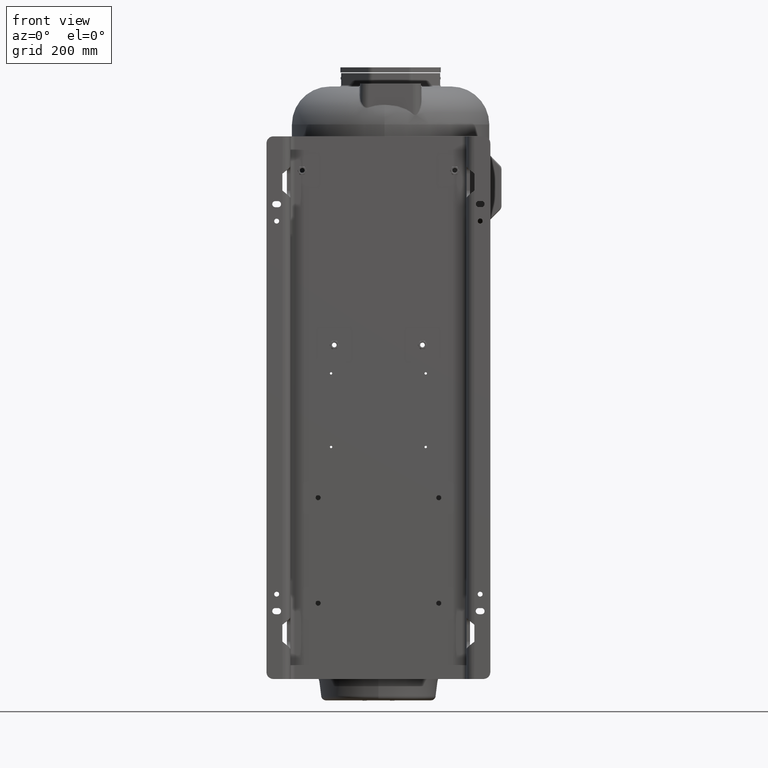
[diagram: clean part render]
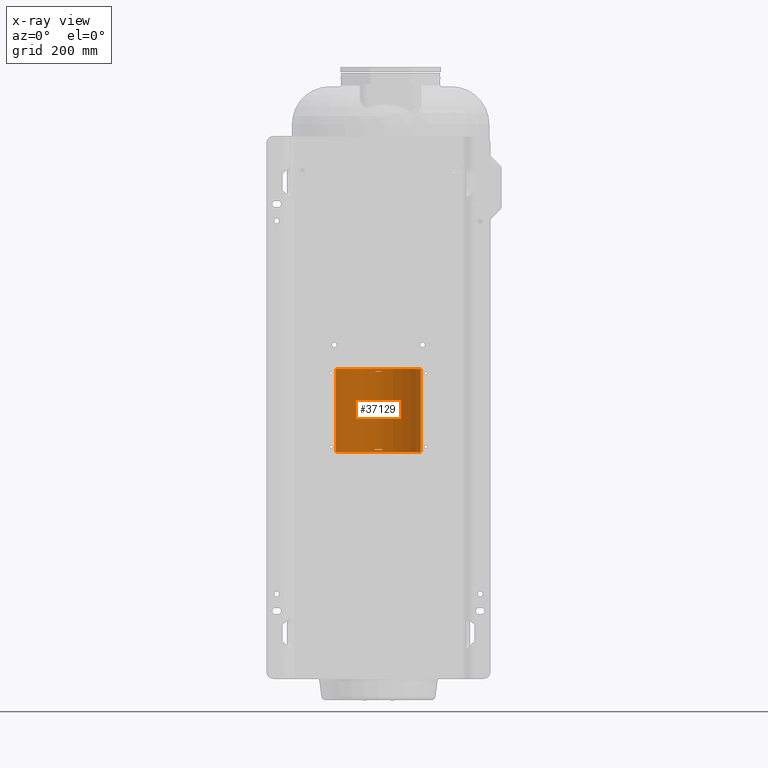
[diagram: x-ray — body ghosted, one internal face saturated and labeled with its STEP entity id]
A machine part, front view, then the same camera in x-ray: the body is ghosted and one INTERNAL B-rep face — a face not visible from any outside direction — is saturated and labeled: STEP entity #37129.
In plain terms, the highlighted cylindrical surface (partial cylindrical patch) has radius 125 mm, axis along (0, 0, 1).
Its self-contained STEP definition (entity closure, byte-faithful):
#298=DIRECTION('',(0.E0,0.E0,-1.E0));
#299=VECTOR('',#298,2.286E2);
#300=CARTESIAN_POINT('',(1.25E2,3.1E2,-5.932E2));
#301=LINE('',#300,#299);
#326=DIRECTION('',(-3.315866100214E-14,1.515824502955E-12,-1.E0));
#327=VECTOR('',#326,6.E0);
#328=CARTESIAN_POINT('',(1.25E2,3.1E2,-5.85E2));
#329=LINE('',#328,#327);
#339=DIRECTION('',(3.315866100214E-14,-1.515824502955E-12,-1.E0));
#340=VECTOR('',#339,6.E0);
#341=CARTESIAN_POINT('',(1.25E2,3.1E2,-8.24E2));
#342=LINE('',#341,#340);
#1670=CARTESIAN_POINT('',(3.422817592163E-13,3.1E2,-8.3E2));
#1671=DIRECTION('',(0.E0,0.E0,1.E0));
#1672=DIRECTION('',(1.E0,0.E0,0.E0));
#1673=AXIS2_PLACEMENT_3D('',#1670,#1671,#1672);
#1684=CARTESIAN_POINT('',(3.440581160557E-13,3.1E2,-8.22E2));
#1685=DIRECTION('',(0.E0,0.E0,1.E0));
#1686=DIRECTION('',(9.982526203816E-1,5.909065832519E-2,0.E0));
#1687=AXIS2_PLACEMENT_3D('',#1684,#1685,#1686);
#1689=DIRECTION('',(0.E0,-2.842170943040E-14,1.E0));
#1690=VECTOR('',#1689,2.E0);
#1691=CARTESIAN_POINT('',(1.246759510945E2,3.189948440056E2,-8.24E2));
#1692=LINE('',#1691,#1690);
#1693=CARTESIAN_POINT('',(3.436140268459E-13,3.1E2,-8.24E2));
#1694=DIRECTION('',(0.E0,0.E0,1.E0));
#1695=DIRECTION('',(9.982526203816E-1,5.909065832520E-2,0.E0));
#1696=AXIS2_PLACEMENT_3D('',#1693,#1694,#1695);
#1698=CARTESIAN_POINT('',(3.436140268459E-13,3.1E2,-8.24E2));
#1699=DIRECTION('',(0.E0,0.E0,1.E0));
#1700=DIRECTION('',(9.984809969620E-1,5.509717511618E-2,0.E0));
#1701=AXIS2_PLACEMENT_3D('',#1698,#1699,#1700);
#1703=CARTESIAN_POINT('',(3.436140268459E-13,3.1E2,-8.24E2));
#1704=DIRECTION('',(0.E0,0.E0,1.E0));
#1705=DIRECTION('',(1.E0,4.297362465877E-13,0.E0));
#1706=AXIS2_PLACEMENT_3D('',#1703,#1704,#1705);
#1708=DIRECTION('',(2.368475785867E-14,1.496876696668E-12,-1.E0));
#1709=VECTOR('',#1708,6.E0);
#1710=CARTESIAN_POINT('',(-1.25E2,3.1E2,-8.24E2));
#1711=LINE('',#1710,#1709);
#1712=CARTESIAN_POINT('',(3.436140268459E-13,3.1E2,-8.24E2));
#1713=DIRECTION('',(0.E0,0.E0,1.E0));
#1714=DIRECTION('',(-9.984809969620E-1,5.509717511658E-2,0.E0));
#1715=AXIS2_PLACEMENT_3D('',#1712,#1713,#1714);
#1717=CARTESIAN_POINT('',(3.436140268459E-13,3.1E2,-8.24E2));
#1718=DIRECTION('',(0.E0,0.E0,1.E0));
#1719=DIRECTION('',(-9.982526203816E-1,5.909065832486E-2,0.E0));
#1720=AXIS2_PLACEMENT_3D('',#1717,#1718,#1719);
#1722=CARTESIAN_POINT('',(3.436140268459E-13,3.1E2,-8.24E2));
#1723=DIRECTION('',(0.E0,0.E0,1.E0));
#1724=DIRECTION('',(-9.974076087559E-1,7.195875204472E-2,0.E0));
#1725=AXIS2_PLACEMENT_3D('',#1722,#1723,#1724);
#1727=DIRECTION('',(0.E0,-5.684341886081E-14,1.E0));
#1728=VECTOR('',#1727,2.E0);
#1729=CARTESIAN_POINT('',(-1.246759510945E2,3.189948440056E2,-8.24E2));
#1730=LINE('',#1729,#1728);
#1731=CARTESIAN_POINT('',(3.440581160557E-13,3.1E2,-8.22E2));
#1732=DIRECTION('',(0.E0,0.E0,1.E0));
#1733=DIRECTION('',(-9.974076087559E-1,7.195875204472E-2,0.E0));
#1734=AXIS2_PLACEMENT_3D('',#1731,#1732,#1733);
#1736=DIRECTION('',(3.907985046682E-12,5.002220859753E-11,1.E0));
#1737=VECTOR('',#1736,1.999999999999E-1);
#1738=CARTESIAN_POINT('',(-1.247815775477E2,3.173863322906E2,-8.22E2));
#1739=LINE('',#1738,#1737);
#1740=CARTESIAN_POINT('',(3.441025249767E-13,3.1E2,-8.218E2));
#1741=DIRECTION('',(0.E0,0.E0,1.E0));
#1742=DIRECTION('',(-9.982526203816E-1,5.909065832486E-2,0.E0));
#1743=AXIS2_PLACEMENT_3D('',#1740,#1741,#1742);
#1745=CARTESIAN_POINT('',(3.441025249767E-13,3.1E2,-8.218E2));
#1746=DIRECTION('',(0.E0,0.E0,1.E0));
#1747=DIRECTION('',(-9.984809969620E-1,5.509717511618E-2,0.E0));
#1748=AXIS2_PLACEMENT_3D('',#1745,#1746,#1747);
#1750=DIRECTION('',(0.E0,0.E0,-1.E0));
#1751=VECTOR('',#1750,2.286E2);
#1752=CARTESIAN_POINT('',(-1.25E2,3.1E2,-5.932E2));
#1753=LINE('',#1752,#1751);
#1754=CARTESIAN_POINT('',(3.948619216626E-13,3.1E2,-5.932E2));
#1755=DIRECTION('',(0.E0,0.E0,1.E0));
#1756=DIRECTION('',(-9.984809969620E-1,5.509717511618E-2,0.E0));
#1757=AXIS2_PLACEMENT_3D('',#1754,#1755,#1756);
#1759=CARTESIAN_POINT('',(3.948619216626E-13,3.1E2,-5.932E2));
#1760=DIRECTION('',(0.E0,0.E0,1.E0));
#1761=DIRECTION('',(-9.982526203816E-1,5.909065832486E-2,0.E0));
#1762=AXIS2_PLACEMENT_3D('',#1759,#1760,#1761);
#1764=DIRECTION('',(-4.121147867410E-12,-5.542233338931E-11,1.E0));
#1765=VECTOR('',#1764,1.999999999999E-1);
#1766=CARTESIAN_POINT('',(-1.247815775477E2,3.173863322906E2,-5.932E2));
#1767=LINE('',#1766,#1765);
#1768=CARTESIAN_POINT('',(3.949063305835E-13,3.1E2,-5.93E2));
#1769=DIRECTION('',(0.E0,0.E0,1.E0));
#1770=DIRECTION('',(-9.974076087559E-1,7.195875204473E-2,0.E0));
#1771=AXIS2_PLACEMENT_3D('',#1768,#1769,#1770);
#1773=DIRECTION('',(0.E0,0.E0,1.E0));
#1774=VECTOR('',#1773,2.E0);
#1775=CARTESIAN_POINT('',(-1.246759510945E2,3.189948440056E2,-5.93E2));
#1776=LINE('',#1775,#1774);
#1777=CARTESIAN_POINT('',(3.953504197934E-13,3.1E2,-5.91E2));
#1778=DIRECTION('',(0.E0,0.E0,1.E0));
#1779=DIRECTION('',(-9.974076087559E-1,7.195875204473E-2,0.E0));
#1780=AXIS2_PLACEMENT_3D('',#1777,#1778,#1779);
#1782=CARTESIAN_POINT('',(3.953504197934E-13,3.1E2,-5.91E2));
#1783=DIRECTION('',(0.E0,0.E0,1.E0));
#1784=DIRECTION('',(-9.982526203816E-1,5.909065832486E-2,0.E0));
#1785=AXIS2_PLACEMENT_3D('',#1782,#1783,#1784);
#1787=CARTESIAN_POINT('',(3.953504197934E-13,3.1E2,-5.91E2));
#1788=DIRECTION('',(0.E0,0.E0,1.E0));
#1789=DIRECTION('',(-9.984809969620E-1,5.509717511657E-2,0.E0));
#1790=AXIS2_PLACEMENT_3D('',#1787,#1788,#1789);
#1792=DIRECTION('',(-3.079018521627E-14,-1.496876696668E-12,-1.E0));
#1793=VECTOR('',#1792,6.E0);
#1794=CARTESIAN_POINT('',(-1.25E2,3.1E2,-5.85E2));
#1795=LINE('',#1794,#1793);
#1796=CARTESIAN_POINT('',(3.953504197934E-13,3.1E2,-5.91E2));
#1797=DIRECTION('',(0.E0,0.E0,1.E0));
#1798=DIRECTION('',(1.E0,4.279172571842E-13,0.E0));
#1799=AXIS2_PLACEMENT_3D('',#1796,#1797,#1798);
#1801=CARTESIAN_POINT('',(3.953504197934E-13,3.1E2,-5.91E2));
#1802=DIRECTION('',(0.E0,0.E0,1.E0));
#1803=DIRECTION('',(9.984809969620E-1,5.509717511618E-2,0.E0));
#1804=AXIS2_PLACEMENT_3D('',#1801,#1802,#1803);
#1806=CARTESIAN_POINT('',(3.953504197934E-13,3.1E2,-5.91E2));
#1807=DIRECTION('',(0.E0,0.E0,1.E0));
#1808=DIRECTION('',(9.982526203816E-1,5.909065832524E-2,0.E0));
#1809=AXIS2_PLACEMENT_3D('',#1806,#1807,#1808);
#1811=DIRECTION('',(0.E0,0.E0,1.E0));
#1812=VECTOR('',#1811,2.E0);
#1813=CARTESIAN_POINT('',(1.246759510945E2,3.189948440056E2,-5.93E2));
#1814=LINE('',#1813,#1812);
#1815=CARTESIAN_POINT('',(3.949063305835E-13,3.1E2,-5.93E2));
#1816=DIRECTION('',(0.E0,0.E0,1.E0));
#1817=DIRECTION('',(9.982526203816E-1,5.909065832524E-2,0.E0));
#1818=AXIS2_PLACEMENT_3D('',#1815,#1816,#1817);
#1820=DIRECTION('',(-4.334310688138E-12,5.883293852096E-11,1.E0));
#1821=VECTOR('',#1820,1.999999999999E-1);
#1822=CARTESIAN_POINT('',(1.247815775477E2,3.173863322906E2,-5.932E2));
#1823=LINE('',#1822,#1821);
#1824=CARTESIAN_POINT('',(3.948619216626E-13,3.1E2,-5.932E2));
#1825=DIRECTION('',(0.E0,0.E0,1.E0));
#1826=DIRECTION('',(1.E0,0.E0,0.E0));
#1827=AXIS2_PLACEMENT_3D('',#1824,#1825,#1826);
#1829=CARTESIAN_POINT('',(3.441025249767E-13,3.1E2,-8.218E2));
#1830=DIRECTION('',(0.E0,0.E0,1.E0));
#1831=DIRECTION('',(1.E0,0.E0,0.E0));
#1832=AXIS2_PLACEMENT_3D('',#1829,#1830,#1831);
#1834=DIRECTION('',(4.050093593832E-12,-5.172751116332E-11,1.E0));
#1835=VECTOR('',#1834,2.E-1);
#1836=CARTESIAN_POINT('',(1.247815775477E2,3.173863322906E2,-8.22E2));
#1837=LINE('',#1836,#1835);
#1838=CARTESIAN_POINT('',(3.949063305835E-13,3.1E2,-5.93E2));
#1839=DIRECTION('',(0.E0,0.E0,1.E0));
#1840=DIRECTION('',(7.258064516133E-2,9.973625468945E-1,0.E0));
#1841=AXIS2_PLACEMENT_3D('',#1838,#1839,#1840);
#1843=DIRECTION('',(0.E0,0.E0,1.E0));
#1844=VECTOR('',#1843,2.E0);
#1845=CARTESIAN_POINT('',(9.072580645163E0,4.346703183618E2,-5.93E2));
#1846=LINE('',#1845,#1844);
#1847=CARTESIAN_POINT('',(3.953504197934E-13,3.1E2,-5.91E2));
#1848=DIRECTION('',(0.E0,0.E0,1.E0));
#1849=DIRECTION('',(7.258064516133E-2,9.973625468945E-1,0.E0));
#1850=AXIS2_PLACEMENT_3D('',#1847,#1848,#1849);
#1852=CARTESIAN_POINT('',(3.953504197934E-13,3.1E2,-5.91E2));
#1853=DIRECTION('',(0.E0,0.E0,1.E0));
#1854=DIRECTION('',(3.119926103038E-2,9.995131845609E-1,0.E0));
#1855=AXIS2_PLACEMENT_3D('',#1852,#1853,#1854);
#1857=CARTESIAN_POINT('',(3.953504197934E-13,3.1E2,-5.91E2));
#1858=DIRECTION('',(0.E0,0.E0,1.E0));
#1859=DIRECTION('',(3.007360000007E-2,9.995476869980E-1,0.E0));
#1860=AXIS2_PLACEMENT_3D('',#1857,#1858,#1859);
#1862=CARTESIAN_POINT('',(3.953504197934E-13,3.1E2,-5.91E2));
#1863=DIRECTION('',(0.E0,0.E0,1.E0));
#1864=DIRECTION('',(-3.007360000054E-2,9.995476869980E-1,0.E0));
#1865=AXIS2_PLACEMENT_3D('',#1862,#1863,#1864);
#1867=CARTESIAN_POINT('',(3.953504197934E-13,3.1E2,-5.91E2));
#1868=DIRECTION('',(0.E0,0.E0,1.E0));
#1869=DIRECTION('',(-3.117407640450E-2,9.995139703678E-1,0.E0));
#1870=AXIS2_PLACEMENT_3D('',#1867,#1868,#1869);
#1872=DIRECTION('',(-1.598721155460E-14,0.E0,1.E0));
#1873=VECTOR('',#1872,2.E0);
#1874=CARTESIAN_POINT('',(-9.072580645164E0,4.346703183618E2,-5.93E2));
#1875=LINE('',#1874,#1873);
#1876=CARTESIAN_POINT('',(3.949063305835E-13,3.1E2,-5.93E2));
#1877=DIRECTION('',(0.E0,0.E0,1.E0));
#1878=DIRECTION('',(-3.117407640450E-2,9.995139703678E-1,0.E0));
#1879=AXIS2_PLACEMENT_3D('',#1876,#1877,#1878);
#1881=DIRECTION('',(-9.916512055955E-12,-5.684341886083E-13,-1.E0));
#1882=VECTOR('',#1881,1.999999999999E-1);
#1883=CARTESIAN_POINT('',(-3.896759550568E0,4.349392462960E2,-5.93E2));
#1884=LINE('',#1883,#1882);
#1885=CARTESIAN_POINT('',(3.948619216626E-13,3.1E2,-5.932E2));
#1886=DIRECTION('',(0.E0,0.E0,1.E0));
#1887=DIRECTION('',(3.119926103038E-2,9.995131845609E-1,0.E0));
#1888=AXIS2_PLACEMENT_3D('',#1885,#1886,#1887);
#1890=DIRECTION('',(9.834355552133E-12,-5.684341886083E-13,-1.E0));
#1891=VECTOR('',#1890,1.999999999999E-1);
#1892=CARTESIAN_POINT('',(3.899907628796E0,4.349391480701E2,-5.93E2));
#1893=LINE('',#1892,#1891);
#1894=CARTESIAN_POINT('',(3.440581160557E-13,3.1E2,-8.22E2));
#1895=DIRECTION('',(0.E0,0.E0,1.E0));
#1896=DIRECTION('',(2.880034106886E-2,9.995851841411E-1,0.E0));
#1897=AXIS2_PLACEMENT_3D('',#1894,#1895,#1896);
#1899=DIRECTION('',(9.734435479911E-12,0.E0,1.E0));
#1900=VECTOR('',#1899,2.E-1);
#1901=CARTESIAN_POINT('',(-3.600042633601E0,4.349481480176E2,-8.22E2));
#1902=LINE('',#1901,#1900);
#1903=CARTESIAN_POINT('',(3.441025249767E-13,3.1E2,-8.218E2));
#1904=DIRECTION('',(0.E0,0.E0,1.E0));
#1905=DIRECTION('',(-2.880034106880E-2,9.995851841411E-1,0.E0));
#1906=AXIS2_PLACEMENT_3D('',#1903,#1904,#1905);
#1908=DIRECTION('',(0.E0,0.E0,1.E0));
#1909=VECTOR('',#1908,2.2E0);
#1910=CARTESIAN_POINT('',(-1.087740211271E1,4.345258291411E2,-8.24E2));
#1911=LINE('',#1910,#1909);
#1912=CARTESIAN_POINT('',(3.436140268459E-13,3.1E2,-8.24E2));
#1913=DIRECTION('',(0.E0,0.E0,1.E0));
#1914=DIRECTION('',(-8.598211949236E-2,9.962966802753E-1,0.E0));
#1915=AXIS2_PLACEMENT_3D('',#1912,#1913,#1914);
#1917=CARTESIAN_POINT('',(3.436140268459E-13,3.1E2,-8.24E2));
#1918=DIRECTION('',(0.E0,0.E0,1.E0));
#1919=DIRECTION('',(-2.959999999982E-2,9.995618240009E-1,0.E0));
#1920=AXIS2_PLACEMENT_3D('',#1917,#1918,#1919);
#1922=CARTESIAN_POINT('',(3.436140268459E-13,3.1E2,-8.24E2));
#1923=DIRECTION('',(0.E0,0.E0,1.E0));
#1924=DIRECTION('',(-2.880034106880E-2,9.995851841411E-1,0.E0));
#1925=AXIS2_PLACEMENT_3D('',#1922,#1923,#1924);
#1927=CARTESIAN_POINT('',(3.436140268459E-13,3.1E2,-8.24E2));
#1928=DIRECTION('',(0.E0,0.E0,1.E0));
#1929=DIRECTION('',(2.880034106886E-2,9.995851841411E-1,0.E0));
#1930=AXIS2_PLACEMENT_3D('',#1927,#1928,#1929);
#1932=CARTESIAN_POINT('',(3.436140268459E-13,3.1E2,-8.24E2));
#1933=DIRECTION('',(0.E0,0.E0,1.E0));
#1934=DIRECTION('',(2.96E-2,9.995618240009E-1,0.E0));
#1935=AXIS2_PLACEMENT_3D('',#1932,#1933,#1934);
#1937=CARTESIAN_POINT('',(3.436140268459E-13,3.1E2,-8.24E2));
#1938=DIRECTION('',(0.E0,0.E0,1.E0));
#1939=DIRECTION('',(8.598211949236E-2,9.962966802753E-1,0.E0));
#1940=AXIS2_PLACEMENT_3D('',#1937,#1938,#1939);
#1942=CARTESIAN_POINT('',(3.436140268459E-13,3.1E2,-8.24E2));
#1943=DIRECTION('',(0.E0,0.E0,1.E0));
#1944=DIRECTION('',(8.701921690171E-2,9.962066331288E-1,0.E0));
#1945=AXIS2_PLACEMENT_3D('',#1942,#1943,#1944);
#1947=DIRECTION('',(0.E0,0.E0,1.E0));
#1948=VECTOR('',#1947,2.2E0);
#1949=CARTESIAN_POINT('',(1.087740211271E1,4.345258291411E2,-8.24E2));
#1950=LINE('',#1949,#1948);
#1951=CARTESIAN_POINT('',(3.441025249767E-13,3.1E2,-8.218E2));
#1952=DIRECTION('',(0.E0,0.E0,1.E0));
#1953=DIRECTION('',(8.701921690171E-2,9.962066331288E-1,0.E0));
#1954=AXIS2_PLACEMENT_3D('',#1951,#1952,#1953);
#1956=DIRECTION('',(-9.625633623498E-12,0.E0,1.E0));
#1957=VECTOR('',#1956,2.E-1);
#1958=CARTESIAN_POINT('',(3.600042633602E0,4.349481480176E2,-8.22E2));
#1959=LINE('',#1958,#1957);
#3279=CARTESIAN_POINT('',(3.966826874229E-13,3.1E2,-5.85E2));
#3280=DIRECTION('',(0.E0,0.E0,1.E0));
#3281=DIRECTION('',(1.E0,0.E0,0.E0));
#3282=AXIS2_PLACEMENT_3D('',#3279,#3280,#3281);
#33926=CARTESIAN_POINT('',(-1.25E2,3.1E2,-5.85E2));
#33928=VERTEX_POINT('',#33926);
#33931=CARTESIAN_POINT('',(1.25E2,3.1E2,-5.85E2));
#33933=VERTEX_POINT('',#33931);
#33958=CARTESIAN_POINT('',(-1.25E2,3.1E2,-8.218E2));
#33960=VERTEX_POINT('',#33958);
#33962=CARTESIAN_POINT('',(1.25E2,3.1E2,-8.218E2));
#33964=VERTEX_POINT('',#33962);
#33982=CARTESIAN_POINT('',(-1.247815775477E2,3.173863322906E2,-8.218E2));
#33983=CARTESIAN_POINT('',(-1.248101246202E2,3.168871468895E2,-8.218E2));
#33984=VERTEX_POINT('',#33982);
#33985=VERTEX_POINT('',#33983);
#33986=CARTESIAN_POINT('',(1.25E2,3.1E2,-8.3E2));
#33987=CARTESIAN_POINT('',(-1.25E2,3.1E2,-8.3E2));
#33988=VERTEX_POINT('',#33986);
#33989=VERTEX_POINT('',#33987);
#33990=CARTESIAN_POINT('',(1.087740211271E1,4.345258291411E2,-8.218E2));
#33991=CARTESIAN_POINT('',(3.600042633600E0,4.349481480176E2,-8.218E2));
#33992=VERTEX_POINT('',#33990);
#33993=VERTEX_POINT('',#33991);
#33994=CARTESIAN_POINT('',(1.247815775477E2,3.173863322906E2,-8.218E2));
#33995=VERTEX_POINT('',#33994);
#34038=CARTESIAN_POINT('',(-3.600042633599E0,4.349481480176E2,-8.218E2));
#34039=CARTESIAN_POINT('',(-1.087740211271E1,4.345258291411E2,-8.218E2));
#34040=VERTEX_POINT('',#34038);
#34041=VERTEX_POINT('',#34039);
#34042=CARTESIAN_POINT('',(-1.087740211271E1,4.345258291411E2,-8.24E2));
#34043=VERTEX_POINT('',#34042);
#34056=CARTESIAN_POINT('',(1.087740211271E1,4.345258291411E2,-8.24E2));
#34057=VERTEX_POINT('',#34056);
#34086=CARTESIAN_POINT('',(1.25E2,3.1E2,-5.932E2));
#34087=CARTESIAN_POINT('',(1.247815775477E2,3.173863322906E2,-5.932E2));
#34088=VERTEX_POINT('',#34086);
#34089=VERTEX_POINT('',#34087);
#34090=CARTESIAN_POINT('',(-1.25E2,3.1E2,-5.932E2));
#34091=VERTEX_POINT('',#34090);
#34092=CARTESIAN_POINT('',(-1.248101246202E2,3.168871468895E2,-5.932E2));
#34093=VERTEX_POINT('',#34092);
#34094=CARTESIAN_POINT('',(3.899907628798E0,4.349391480701E2,-5.932E2));
#34095=CARTESIAN_POINT('',(-3.896759550570E0,4.349392462960E2,-5.932E2));
#34096=VERTEX_POINT('',#34094);
#34097=VERTEX_POINT('',#34095);
#34098=CARTESIAN_POINT('',(-1.247815775477E2,3.173863322906E2,-5.932E2));
#34099=VERTEX_POINT('',#34098);
#34574=CARTESIAN_POINT('',(1.247815775477E2,3.173863322907E2,-5.93E2));
#34575=CARTESIAN_POINT('',(1.246759510945E2,3.189948440056E2,-5.93E2));
#34576=VERTEX_POINT('',#34574);
#34577=VERTEX_POINT('',#34575);
#34578=CARTESIAN_POINT('',(9.072580645167E0,4.346703183618E2,-5.93E2));
#34579=CARTESIAN_POINT('',(3.899907628790E0,4.349391480701E2,-5.93E2));
#34580=VERTEX_POINT('',#34578);
#34581=VERTEX_POINT('',#34579);
#34582=CARTESIAN_POINT('',(-3.896759550562E0,4.349392462960E2,-5.93E2));
#34583=CARTESIAN_POINT('',(-9.072580645168E0,4.346703183618E2,-5.93E2));
#34584=VERTEX_POINT('',#34582);
#34585=VERTEX_POINT('',#34583);
#34586=CARTESIAN_POINT('',(-1.246759510945E2,3.189948440056E2,-5.93E2));
#34587=CARTESIAN_POINT('',(-1.247815775477E2,3.173863322906E2,-5.93E2));
#34588=VERTEX_POINT('',#34586);
#34589=VERTEX_POINT('',#34587);
#34590=CARTESIAN_POINT('',(1.25E2,3.100000000001E2,-5.91E2));
#34591=CARTESIAN_POINT('',(1.248101246203E2,3.168871468895E2,-5.91E2));
#34592=VERTEX_POINT('',#34590);
#34593=VERTEX_POINT('',#34591);
#34594=CARTESIAN_POINT('',(1.247815775477E2,3.173863322907E2,-5.91E2));
#34595=CARTESIAN_POINT('',(1.246759510945E2,3.189948440056E2,-5.91E2));
#34596=VERTEX_POINT('',#34594);
#34597=VERTEX_POINT('',#34595);
#34598=CARTESIAN_POINT('',(9.072580645167E0,4.346703183618E2,-5.91E2));
#34599=CARTESIAN_POINT('',(3.899907628790E0,4.349391480701E2,-5.91E2));
#34600=VERTEX_POINT('',#34598);
#34601=VERTEX_POINT('',#34599);
#34602=CARTESIAN_POINT('',(3.759200000009E0,4.349434608747E2,-5.91E2));
#34603=CARTESIAN_POINT('',(-3.759200000095E0,4.349434608747E2,-5.91E2));
#34604=VERTEX_POINT('',#34602);
#34605=VERTEX_POINT('',#34603);
#34606=CARTESIAN_POINT('',(-3.896759550562E0,4.349392462960E2,-5.91E2));
#34607=CARTESIAN_POINT('',(-9.072580645169E0,4.346703183618E2,-5.91E2));
#34608=VERTEX_POINT('',#34606);
#34609=VERTEX_POINT('',#34607);
#34610=CARTESIAN_POINT('',(-1.246759510945E2,3.189948440056E2,-5.91E2));
#34611=CARTESIAN_POINT('',(-1.247815775477E2,3.173863322906E2,-5.91E2));
#34612=VERTEX_POINT('',#34610);
#34613=VERTEX_POINT('',#34611);
#34614=CARTESIAN_POINT('',(-1.248101246202E2,3.168871468896E2,-5.91E2));
#34615=CARTESIAN_POINT('',(-1.25E2,3.099999999999E2,-5.91E2));
#34616=VERTEX_POINT('',#34614);
#34617=VERTEX_POINT('',#34615);
#34898=CARTESIAN_POINT('',(-1.25E2,3.1E2,-8.24E2));
#34900=VERTEX_POINT('',#34898);
#34902=CARTESIAN_POINT('',(1.25E2,3.1E2,-8.24E2));
#34904=VERTEX_POINT('',#34902);
#34906=CARTESIAN_POINT('',(1.247815775477E2,3.173863322906E2,-8.22E2));
#34907=CARTESIAN_POINT('',(1.246759510945E2,3.189948440056E2,-8.22E2));
#34908=VERTEX_POINT('',#34906);
#34909=VERTEX_POINT('',#34907);
#34910=CARTESIAN_POINT('',(3.600042633608E0,4.349481480176E2,-8.22E2));
#34911=CARTESIAN_POINT('',(-3.600042633607E0,4.349481480176E2,-8.22E2));
#34912=VERTEX_POINT('',#34910);
#34913=VERTEX_POINT('',#34911);
#34914=CARTESIAN_POINT('',(-1.246759510945E2,3.189948440056E2,-8.22E2));
#34915=CARTESIAN_POINT('',(-1.247815775477E2,3.173863322906E2,-8.22E2));
#34916=VERTEX_POINT('',#34914);
#34917=VERTEX_POINT('',#34915);
#34918=CARTESIAN_POINT('',(1.248101246203E2,3.168871468895E2,-8.24E2));
#34919=VERTEX_POINT('',#34918);
#34920=CARTESIAN_POINT('',(1.247815775477E2,3.173863322906E2,-8.24E2));
#34921=CARTESIAN_POINT('',(1.246759510945E2,3.189948440056E2,-8.24E2));
#34922=VERTEX_POINT('',#34920);
#34923=VERTEX_POINT('',#34921);
#34924=CARTESIAN_POINT('',(1.074776493655E1,4.345370850344E2,-8.24E2));
#34925=CARTESIAN_POINT('',(3.699999999984E0,4.349452280001E2,-8.24E2));
#34926=VERTEX_POINT('',#34924);
#34927=VERTEX_POINT('',#34925);
#34928=CARTESIAN_POINT('',(3.600042633608E0,4.349481480176E2,-8.24E2));
#34929=CARTESIAN_POINT('',(-3.600042633607E0,4.349481480176E2,-8.24E2));
#34930=VERTEX_POINT('',#34928);
#34931=VERTEX_POINT('',#34929);
#34932=CARTESIAN_POINT('',(-3.699999999977E0,4.349452280001E2,-8.24E2));
#34933=CARTESIAN_POINT('',(-1.074776493655E1,4.345370850344E2,-8.24E2));
#34934=VERTEX_POINT('',#34932);
#34935=VERTEX_POINT('',#34933);
#34936=CARTESIAN_POINT('',(-1.246759510945E2,3.189948440056E2,-8.24E2));
#34937=CARTESIAN_POINT('',(-1.247815775477E2,3.173863322906E2,-8.24E2));
#34938=VERTEX_POINT('',#34936);
#34939=VERTEX_POINT('',#34937);
#34940=CARTESIAN_POINT('',(-1.248101246202E2,3.168871468896E2,-8.24E2));
#34941=VERTEX_POINT('',#34940);
#37007=CARTESIAN_POINT('',(3.422817592163E-13,3.1E2,-8.3E2));
#37008=DIRECTION('',(0.E0,0.E0,1.E0));
#37009=DIRECTION('',(1.E0,0.E0,0.E0));
#37010=AXIS2_PLACEMENT_3D('',#37007,#37008,#37009);
#37011=CYLINDRICAL_SURFACE('',#37010,1.25E2);
#37012=ORIENTED_EDGE('',*,*,#36339,.T.);
#37014=ORIENTED_EDGE('',*,*,#37013,.F.);
#37015=ORIENTED_EDGE('',*,*,#36706,.F.);
#37017=ORIENTED_EDGE('',*,*,#37016,.F.);
#37018=ORIENTED_EDGE('',*,*,#36702,.F.);
#37019=ORIENTED_EDGE('',*,*,#36164,.T.);
#37020=ORIENTED_EDGE('',*,*,#36997,.T.);
#37021=ORIENTED_EDGE('',*,*,#36442,.F.);
#37022=ORIENTED_EDGE('',*,*,#36742,.F.);
#37024=ORIENTED_EDGE('',*,*,#37023,.F.);
#37025=ORIENTED_EDGE('',*,*,#36738,.F.);
#37027=ORIENTED_EDGE('',*,*,#37026,.T.);
#37028=ORIENTED_EDGE('',*,*,#36291,.T.);
#37030=ORIENTED_EDGE('',*,*,#37029,.T.);
#37032=ORIENTED_EDGE('',*,*,#37031,.T.);
#37034=ORIENTED_EDGE('',*,*,#37033,.T.);
#37035=ORIENTED_EDGE('',*,*,#36470,.F.);
#37037=ORIENTED_EDGE('',*,*,#37036,.F.);
#37039=ORIENTED_EDGE('',*,*,#37038,.F.);
#37041=ORIENTED_EDGE('',*,*,#37040,.T.);
#37043=ORIENTED_EDGE('',*,*,#37042,.F.);
#37045=ORIENTED_EDGE('',*,*,#37044,.T.);
#37047=ORIENTED_EDGE('',*,*,#37046,.T.);
#37049=ORIENTED_EDGE('',*,*,#37048,.T.);
#37051=ORIENTED_EDGE('',*,*,#37050,.T.);
#37052=ORIENTED_EDGE('',*,*,#36456,.F.);
#37054=ORIENTED_EDGE('',*,*,#37053,.F.);
#37055=ORIENTED_EDGE('',*,*,#36151,.T.);
#37057=ORIENTED_EDGE('',*,*,#37056,.T.);
#37059=ORIENTED_EDGE('',*,*,#37058,.T.);
#37061=ORIENTED_EDGE('',*,*,#37060,.T.);
#37063=ORIENTED_EDGE('',*,*,#37062,.F.);
#37065=ORIENTED_EDGE('',*,*,#37064,.F.);
#37067=ORIENTED_EDGE('',*,*,#37066,.F.);
#37069=ORIENTED_EDGE('',*,*,#37068,.F.);
#37070=ORIENTED_EDGE('',*,*,#36137,.T.);
#37072=ORIENTED_EDGE('',*,*,#37071,.T.);
#37074=ORIENTED_EDGE('',*,*,#37073,.F.);
#37075=EDGE_LOOP('',(#37012,#37014,#37015,#37017,#37018,#37019,#37020,#37021,
#37022,#37024,#37025,#37027,#37028,#37030,#37032,#37034,#37035,#37037,#37039,
#37041,#37043,#37045,#37047,#37049,#37051,#37052,#37054,#37055,#37057,#37059,
#37061,#37063,#37065,#37067,#37069,#37070,#37072,#37074));
#37076=FACE_OUTER_BOUND('',#37075,.F.);
#37078=ORIENTED_EDGE('',*,*,#37077,.F.);
#37080=ORIENTED_EDGE('',*,*,#37079,.T.);
#37082=ORIENTED_EDGE('',*,*,#37081,.T.);
#37084=ORIENTED_EDGE('',*,*,#37083,.T.);
#37086=ORIENTED_EDGE('',*,*,#37085,.T.);
#37088=ORIENTED_EDGE('',*,*,#37087,.T.);
#37090=ORIENTED_EDGE('',*,*,#37089,.T.);
#37092=ORIENTED_EDGE('',*,*,#37091,.F.);
#37094=ORIENTED_EDGE('',*,*,#37093,.F.);
#37096=ORIENTED_EDGE('',*,*,#37095,.T.);
#37098=ORIENTED_EDGE('',*,*,#37097,.F.);
#37100=ORIENTED_EDGE('',*,*,#37099,.F.);
#37101=EDGE_LOOP('',(#37078,#37080,#37082,#37084,#37086,#37088,#37090,#37092,
#37094,#37096,#37098,#37100));
#37102=FACE_BOUND('',#37101,.F.);
#37103=ORIENTED_EDGE('',*,*,#36315,.T.);
#37105=ORIENTED_EDGE('',*,*,#37104,.T.);
#37107=ORIENTED_EDGE('',*,*,#37106,.T.);
#37109=ORIENTED_EDGE('',*,*,#37108,.F.);
#37111=ORIENTED_EDGE('',*,*,#37110,.F.);
#37112=ORIENTED_EDGE('',*,*,#36726,.F.);
#37114=ORIENTED_EDGE('',*,*,#37113,.F.);
#37115=ORIENTED_EDGE('',*,*,#36722,.F.);
#37117=ORIENTED_EDGE('',*,*,#37116,.F.);
#37118=ORIENTED_EDGE('',*,*,#36718,.F.);
#37120=ORIENTED_EDGE('',*,*,#37119,.F.);
#37122=ORIENTED_EDGE('',*,*,#37121,.T.);
#37124=ORIENTED_EDGE('',*,*,#37123,.T.);
#37126=ORIENTED_EDGE('',*,*,#37125,.F.);
#37127=EDGE_LOOP('',(#37103,#37105,#37107,#37109,#37111,#37112,#37114,#37115,
#37117,#37118,#37120,#37122,#37124,#37126));
#37128=FACE_BOUND('',#37127,.F.);
#37129=ADVANCED_FACE('',(#37076,#37102,#37128),#37011,.F.);
#1674=CIRCLE('',#1673,1.25E2);
#1688=CIRCLE('',#1687,1.25E2);
#1697=CIRCLE('',#1696,1.25E2);
#1702=CIRCLE('',#1701,1.25E2);
#1707=CIRCLE('',#1706,1.25E2);
#1716=CIRCLE('',#1715,1.25E2);
#1721=CIRCLE('',#1720,1.25E2);
#1726=CIRCLE('',#1725,1.25E2);
#1735=CIRCLE('',#1734,1.25E2);
#1744=CIRCLE('',#1743,1.25E2);
#1749=CIRCLE('',#1748,1.25E2);
#1758=CIRCLE('',#1757,1.25E2);
#1763=CIRCLE('',#1762,1.25E2);
#1772=CIRCLE('',#1771,1.25E2);
#1781=CIRCLE('',#1780,1.25E2);
#1786=CIRCLE('',#1785,1.25E2);
#1791=CIRCLE('',#1790,1.25E2);
#1800=CIRCLE('',#1799,1.25E2);
#1805=CIRCLE('',#1804,1.25E2);
#1810=CIRCLE('',#1809,1.25E2);
#1819=CIRCLE('',#1818,1.25E2);
#1828=CIRCLE('',#1827,1.25E2);
#1833=CIRCLE('',#1832,1.25E2);
#1842=CIRCLE('',#1841,1.25E2);
#1851=CIRCLE('',#1850,1.25E2);
#1856=CIRCLE('',#1855,1.25E2);
#1861=CIRCLE('',#1860,1.25E2);
#1866=CIRCLE('',#1865,1.25E2);
#1871=CIRCLE('',#1870,1.25E2);
#1880=CIRCLE('',#1879,1.25E2);
#1889=CIRCLE('',#1888,1.25E2);
#1898=CIRCLE('',#1897,1.25E2);
#1907=CIRCLE('',#1906,1.25E2);
#1916=CIRCLE('',#1915,1.25E2);
#1921=CIRCLE('',#1920,1.25E2);
#1926=CIRCLE('',#1925,1.25E2);
#1931=CIRCLE('',#1930,1.25E2);
#1936=CIRCLE('',#1935,1.25E2);
#1941=CIRCLE('',#1940,1.25E2);
#1946=CIRCLE('',#1945,1.25E2);
#1955=CIRCLE('',#1954,1.25E2);
#3283=CIRCLE('',#3282,1.25E2);
#36137=EDGE_CURVE('',#34088,#33964,#301,.T.);
#36151=EDGE_CURVE('',#33933,#34592,#329,.T.);
#36164=EDGE_CURVE('',#34904,#33988,#342,.T.);
#36291=EDGE_CURVE('',#34916,#34917,#1735,.T.);
#36315=EDGE_CURVE('',#34912,#34913,#1898,.T.);
#36339=EDGE_CURVE('',#34908,#34909,#1688,.T.);
#36442=EDGE_CURVE('',#34900,#33989,#1711,.T.);
#36456=EDGE_CURVE('',#33928,#34617,#1795,.T.);
#36470=EDGE_CURVE('',#34091,#33960,#1753,.T.);
#36702=EDGE_CURVE('',#34904,#34919,#1707,.T.);
#36706=EDGE_CURVE('',#34922,#34923,#1697,.T.);
#36718=EDGE_CURVE('',#34926,#34927,#1941,.T.);
#36722=EDGE_CURVE('',#34930,#34931,#1931,.T.);
#36726=EDGE_CURVE('',#34934,#34935,#1921,.T.);
#36738=EDGE_CURVE('',#34938,#34939,#1726,.T.);
#36742=EDGE_CURVE('',#34941,#34900,#1716,.T.);
#36997=EDGE_CURVE('',#33988,#33989,#1674,.T.);
#37013=EDGE_CURVE('',#34923,#34909,#1692,.T.);
#37016=EDGE_CURVE('',#34919,#34922,#1702,.T.);
#37023=EDGE_CURVE('',#34939,#34941,#1721,.T.);
#37026=EDGE_CURVE('',#34938,#34916,#1730,.T.);
#37029=EDGE_CURVE('',#34917,#33984,#1739,.T.);
#37031=EDGE_CURVE('',#33984,#33985,#1744,.T.);
#37033=EDGE_CURVE('',#33985,#33960,#1749,.T.);
#37036=EDGE_CURVE('',#34093,#34091,#1758,.T.);
#37038=EDGE_CURVE('',#34099,#34093,#1763,.T.);
#37040=EDGE_CURVE('',#34099,#34589,#1767,.T.);
#37042=EDGE_CURVE('',#34588,#34589,#1772,.T.);
#37044=EDGE_CURVE('',#34588,#34612,#1776,.T.);
#37046=EDGE_CURVE('',#34612,#34613,#1781,.T.);
#37048=EDGE_CURVE('',#34613,#34616,#1786,.T.);
#37050=EDGE_CURVE('',#34616,#34617,#1791,.T.);
#37053=EDGE_CURVE('',#33933,#33928,#3283,.T.);
#37056=EDGE_CURVE('',#34592,#34593,#1800,.T.);
#37058=EDGE_CURVE('',#34593,#34596,#1805,.T.);
#37060=EDGE_CURVE('',#34596,#34597,#1810,.T.);
#37062=EDGE_CURVE('',#34577,#34597,#1814,.T.);
#37064=EDGE_CURVE('',#34576,#34577,#1819,.T.);
#37066=EDGE_CURVE('',#34089,#34576,#1823,.T.);
#37068=EDGE_CURVE('',#34088,#34089,#1828,.T.);
#37071=EDGE_CURVE('',#33964,#33995,#1833,.T.);
#37073=EDGE_CURVE('',#34908,#33995,#1837,.T.);
#37077=EDGE_CURVE('',#34580,#34581,#1842,.T.);
#37079=EDGE_CURVE('',#34580,#34600,#1846,.T.);
#37081=EDGE_CURVE('',#34600,#34601,#1851,.T.);
#37083=EDGE_CURVE('',#34601,#34604,#1856,.T.);
#37085=EDGE_CURVE('',#34604,#34605,#1861,.T.);
#37087=EDGE_CURVE('',#34605,#34608,#1866,.T.);
#37089=EDGE_CURVE('',#34608,#34609,#1871,.T.);
#37091=EDGE_CURVE('',#34585,#34609,#1875,.T.);
#37093=EDGE_CURVE('',#34584,#34585,#1880,.T.);
#37095=EDGE_CURVE('',#34584,#34097,#1884,.T.);
#37097=EDGE_CURVE('',#34096,#34097,#1889,.T.);
#37099=EDGE_CURVE('',#34581,#34096,#1893,.T.);
#37104=EDGE_CURVE('',#34913,#34040,#1902,.T.);
#37106=EDGE_CURVE('',#34040,#34041,#1907,.T.);
#37108=EDGE_CURVE('',#34043,#34041,#1911,.T.);
#37110=EDGE_CURVE('',#34935,#34043,#1916,.T.);
#37113=EDGE_CURVE('',#34931,#34934,#1926,.T.);
#37116=EDGE_CURVE('',#34927,#34930,#1936,.T.);
#37119=EDGE_CURVE('',#34057,#34926,#1946,.T.);
#37121=EDGE_CURVE('',#34057,#33992,#1950,.T.);
#37123=EDGE_CURVE('',#33992,#33993,#1955,.T.);
#37125=EDGE_CURVE('',#34912,#33993,#1959,.T.);